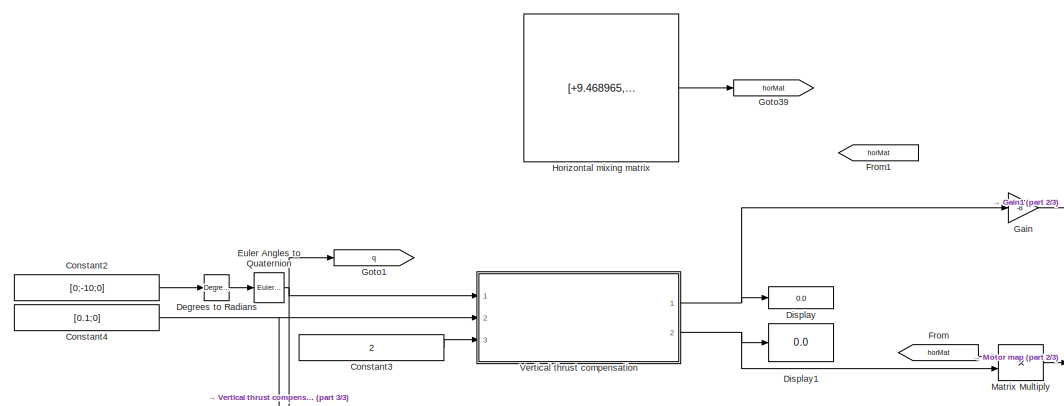
[diagram: root canvas - part 1/3, top left region]
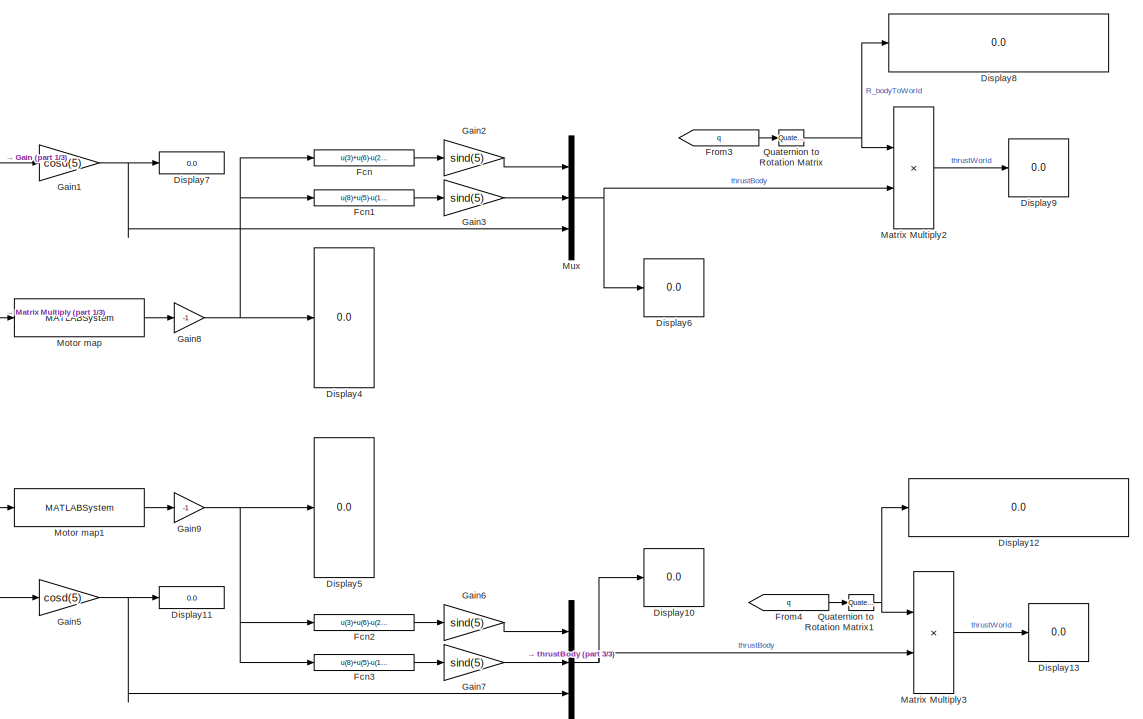
[diagram: root canvas - part 2/3, right side, full height]
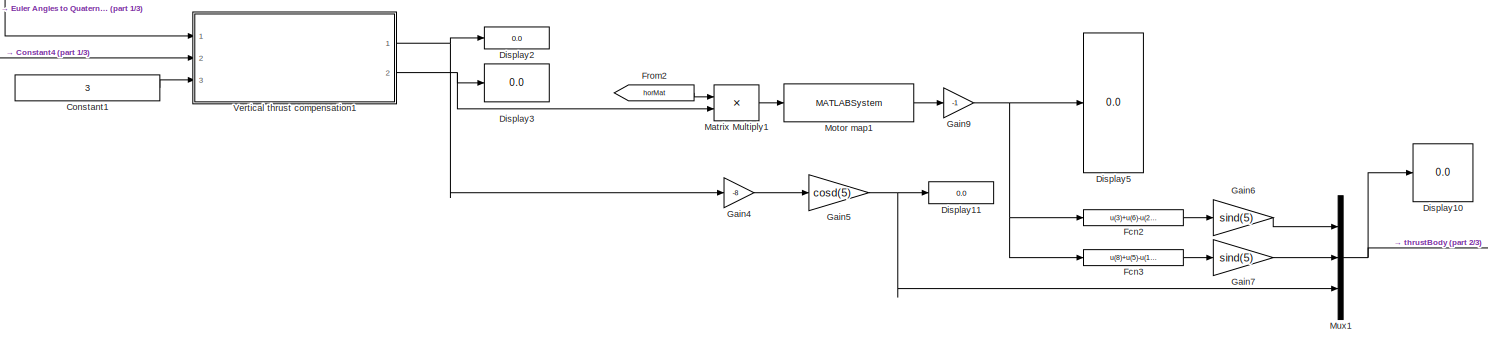
[diagram: root canvas - part 3/3, bottom center region]
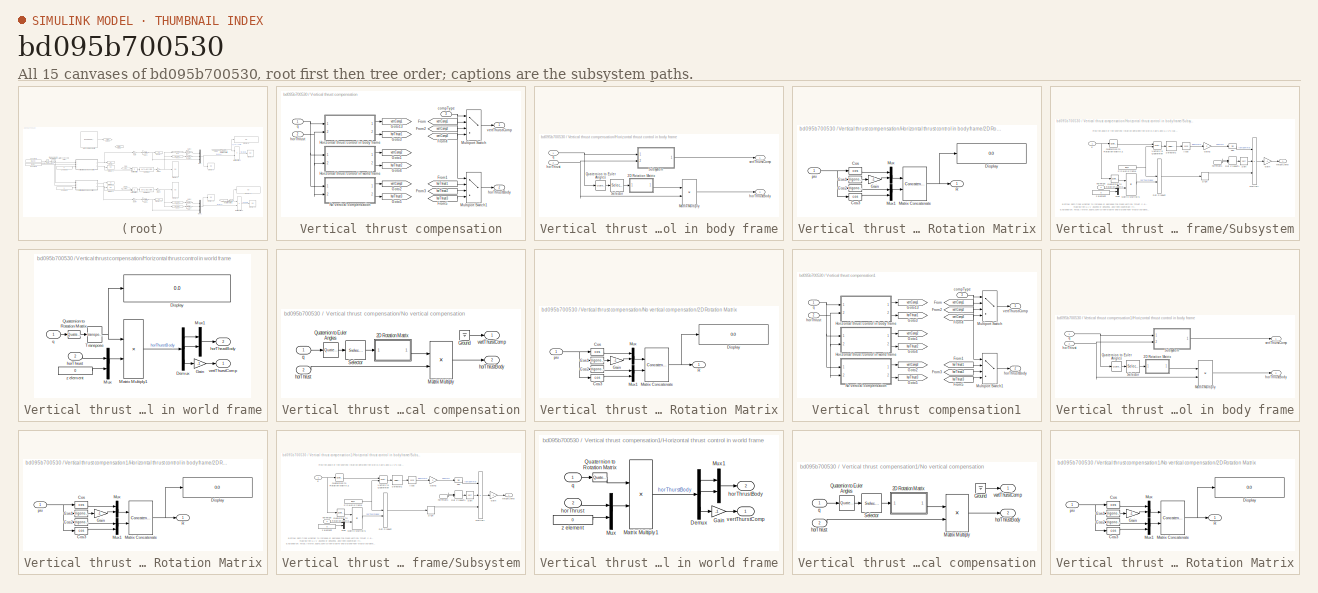
[diagram: thumbnail index - all 15 canvases of the model, root first then tree order]
MODEL slx_bd095b700530
KIND model
CONFIG AbsTol = auto
CONFIG EnableMultiTasking = off
CONFIG FixedStep = auto
CONFIG MaxStep = auto
CONFIG MinStep = auto
CONFIG RelTol = 1e-3
CONFIG SampleTimeConstraint = Unconstrained
CONFIG SolverName = VariableStepAuto
CONFIG StartTime = 0.0
CONFIG StopTime = 10.0
BLOCK [Constant] Constant1
  Value = 3
BLOCK [Constant] Constant2
  Value = [0;-10;0]
BLOCK [Constant] Constant3
  Value = 2
BLOCK [Constant] Constant4
  Value = [0.1;0]
BLOCK [Reference] Degrees to Radians  REF=simulink_extras/Transformations/Degrees to
Radians
  Ports = [1, 1]
  SourceBlock = simulink_extras/Transformations/Degrees to\nRadians
  SourceProductBaseCode = SL
  SourceType = DegreesToRadians
BLOCK [Display] Display
  Decimation = 1
  Ports = [1]
BLOCK [Display] Display1
  Decimation = 1
  Ports = [1]
BLOCK [Display] Display10
  Decimation = 1
  Ports = [1]
BLOCK [Display] Display11
  Decimation = 1
  Ports = [1]
BLOCK [Display] Display12
  Decimation = 1
  Ports = [1]
BLOCK [Display] Display13
  Decimation = 1
  Ports = [1]
BLOCK [Display] Display2
  Decimation = 1
  Ports = [1]
BLOCK [Display] Display3
  Decimation = 1
  Ports = [1]
BLOCK [Display] Display4
  Decimation = 1
  Ports = [1]
BLOCK [Display] Display5
  Decimation = 1
  Ports = [1]
BLOCK [Display] Display6
  Decimation = 1
  Ports = [1]
BLOCK [Display] Display7
  Decimation = 1
  Ports = [1]
BLOCK [Display] Display8
  Decimation = 1
  Ports = [1]
BLOCK [Display] Display9
  Decimation = 1
  Ports = [1]
BLOCK [Reference] Euler Angles to Quaternion  REF=QuaternionLibrary/Euler Angles
to Quaternion
  Ports = [1, 1]
  SourceBlock = QuaternionLibrary/Euler Angles\nto Quaternion
BLOCK [Fcn] Fcn
  Expr = u(3)+u(6)-u(2)-u(7)
BLOCK [Fcn] Fcn1
  Expr = u(8)+u(5)-u(1)-u(4)
BLOCK [Fcn] Fcn2
  Expr = u(3)+u(6)-u(2)-u(7)
BLOCK [Fcn] Fcn3
  Expr = u(8)+u(5)-u(1)-u(4)
BLOCK [From] From
  GotoTag = horMat
BLOCK [From] From1
  GotoTag = horMat
BLOCK [From] From2
  GotoTag = horMat
BLOCK [From] From3
  GotoTag = q
BLOCK [From] From4
  GotoTag = q
BLOCK [Gain] Gain
  Gain = -8
BLOCK [Gain] Gain1
  Gain = cosd(5)
BLOCK [Gain] Gain2
  Gain = sind(5)
BLOCK [Gain] Gain3
  Gain = sind(5)
BLOCK [Gain] Gain4
  Gain = -8
BLOCK [Gain] Gain5
  Gain = cosd(5)
BLOCK [Gain] Gain6
  Gain = sind(5)
BLOCK [Gain] Gain7
  Gain = sind(5)
BLOCK [Gain] Gain8
  Gain = -1
BLOCK [Gain] Gain9
  Gain = -1
BLOCK [Goto] Goto1
  GotoTag = q
BLOCK [Goto] Goto39
  GotoTag = horMat
BLOCK [Constant] Horizontal mixing matrix
  Value = [+9.468965, -22.860105;\n -9.468965, +22.860105;\n -22.860105, +9.468965;\n -9.468965, -22.860105;\n +9.468965, +22.860105;\n +22.860105, -9.468965;\n -22.860105, -9.468965;\n +22.860105, +9.468965]
BLOCK [Product] Matrix Multiply
  Multiplication = Matrix(*)
  Ports = [2, 1]
BLOCK [Product] Matrix Multiply1
  Multiplication = Matrix(*)
  Ports = [2, 1]
BLOCK [Product] Matrix Multiply2
  Multiplication = Matrix(*)
  Ports = [2, 1]
BLOCK [Product] Matrix Multiply3
  Multiplication = Matrix(*)
  Ports = [2, 1]
BLOCK [MATLABSystem] Motor map
  MaskDisplay = disp(['MOTOR' char(10) 'MAP' char(10) 'octa_x']);\nport_label('input',1,'px4PWM');\nport_label('output',1,'simPWM');
  MaskType = MotorMap
  Ports = [1, 1]
  SimulateUsing = Code generation
  System = MotorMap
  airframeConfig = 5
BLOCK [MATLABSystem] Motor map1
  MaskDisplay = disp(['MOTOR' char(10) 'MAP' char(10) 'octa_x']);\nport_label('input',1,'px4PWM');\nport_label('output',1,'simPWM');
  MaskType = MotorMap
  Ports = [1, 1]
  SimulateUsing = Code generation
  System = MotorMap
  airframeConfig = 5
BLOCK [Mux] Mux
  DisplayOption = bar
  Inputs = 3
  Ports = [3, 1]
BLOCK [Mux] Mux1
  DisplayOption = bar
  Inputs = 3
  Ports = [3, 1]
BLOCK [Reference] Quaternion to Rotation Matrix  REF=QuaternionLibrary/Quaternion
to Rotation Matrix
  Ports = [1, 1]
  SourceBlock = QuaternionLibrary/Quaternion\nto Rotation Matrix
BLOCK [Reference] Quaternion to Rotation Matrix1  REF=QuaternionLibrary/Quaternion
to Rotation Matrix
  Ports = [1, 1]
  SourceBlock = QuaternionLibrary/Quaternion\nto Rotation Matrix
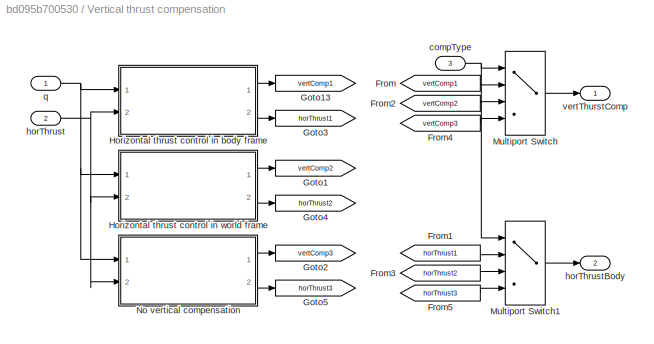
BLOCK [SubSystem] Vertical thrust compensation
  Ports = [3, 2]
  RequestExecContextInheritance = off
BLOCK [Outport] Vertical thrust compensation/ horThrustBody
  Port = 2
  VectorParamsAs1DForOutWhenUnconnected = off
BLOCK [Outport] Vertical thrust compensation/ vertThurstComp
  VectorParamsAs1DForOutWhenUnconnected = off
BLOCK [From] Vertical thrust compensation/From
  GotoTag = vertComp1
BLOCK [From] Vertical thrust compensation/From1
  GotoTag = horThrust1
BLOCK [From] Vertical thrust compensation/From2
  GotoTag = vertComp2
BLOCK [From] Vertical thrust compensation/From3
  GotoTag = horThrust2
BLOCK [From] Vertical thrust compensation/From4
  GotoTag = vertComp3
BLOCK [From] Vertical thrust compensation/From5
  GotoTag = horThrust3
BLOCK [Goto] Vertical thrust compensation/Goto1
  GotoTag = vertComp2
BLOCK [Goto] Vertical thrust compensation/Goto13
  GotoTag = vertComp1
BLOCK [Goto] Vertical thrust compensation/Goto2
  GotoTag = vertComp3
BLOCK [Goto] Vertical thrust compensation/Goto3
  GotoTag = horThrust1
BLOCK [Goto] Vertical thrust compensation/Goto4
  GotoTag = horThrust2
BLOCK [Goto] Vertical thrust compensation/Goto5
  GotoTag = horThrust3
BLOCK [SubSystem] Vertical thrust compensation/Horizontal thrust control in body frame
  Ports = [2, 2]
  RequestExecContextInheritance = off
  VariantControl = HorThrustBodyFrame
BLOCK [SubSystem] Vertical thrust compensation/Horizontal thrust control in body frame/2D Rotation Matrix
  Ports = [1, 1]
  RequestExecContextInheritance = off
BLOCK [Trigonometry] Vertical thrust compensation/Horizontal thrust control in body frame/2D Rotation Matrix/Cos
  Operator = cos
  Ports = [1, 1]
BLOCK [Trigonometry] Vertical thrust compensation/Horizontal thrust control in body frame/2D Rotation Matrix/Cos1
  Ports = [1, 1]
BLOCK [Trigonometry] Vertical thrust compensation/Horizontal thrust control in body frame/2D Rotation Matrix/Cos2
  Ports = [1, 1]
BLOCK [Trigonometry] Vertical thrust compensation/Horizontal thrust control in body frame/2D Rotation Matrix/Cos3
  Operator = cos
  Ports = [1, 1]
BLOCK [Display] Vertical thrust compensation/Horizontal thrust control in body frame/2D Rotation Matrix/Display
  Decimation = 1
  Ports = [1]
BLOCK [Gain] Vertical thrust compensation/Horizontal thrust control in body frame/2D Rotation Matrix/Gain
  Gain = -1
BLOCK [Concatenate] Vertical thrust compensation/Horizontal thrust control in body frame/2D Rotation Matrix/Matrix Concatenate
  ConcatenateDimension = 2
  Mode = Multidimensional array
  Ports = [2, 1]
BLOCK [Mux] Vertical thrust compensation/Horizontal thrust control in body frame/2D Rotation Matrix/Mux
  DisplayOption = bar
  Inputs = 2
  Ports = [2, 1]
BLOCK [Mux] Vertical thrust compensation/Horizontal thrust control in body frame/2D Rotation Matrix/Mux1
  DisplayOption = bar
  Inputs = 2
  Ports = [2, 1]
BLOCK [Outport] Vertical thrust compensation/Horizontal thrust control in body frame/2D Rotation Matrix/R
  VectorParamsAs1DForOutWhenUnconnected = off
BLOCK [Inport] Vertical thrust compensation/Horizontal thrust control in body frame/2D Rotation Matrix/psi
BLOCK [Product] Vertical thrust compensation/Horizontal thrust control in body frame/Matrix Multiply
  Multiplication = Matrix(*)
  Ports = [2, 1]
BLOCK [Reference] Vertical thrust compensation/Horizontal thrust control in body frame/Quaternion to Euler Angles  REF=QuaternionLibrary/Quaternion
to Euler Angles
  Ports = [1, 1]
  SourceBlock = QuaternionLibrary/Quaternion\nto Euler Angles
BLOCK [Selector] Vertical thrust compensation/Horizontal thrust control in body frame/Selector
  IndexOptions = Index vector (dialog)
  Indices = 3
  InputPortWidth = 3
  OutputSizes = 1
  Ports = [1, 1]
BLOCK [SubSystem] Vertical thrust compensation/Horizontal thrust control in body frame/Subsystem
  Ports = [2, 1]
  RequestExecContextInheritance = off
BLOCK [Trigonometry] Vertical thrust compensation/Horizontal thrust control in body frame/Subsystem/Acos
  Operator = acos
  Ports = [1, 1]
BLOCK [DotProduct] Vertical thrust compensation/Horizontal thrust control in body frame/Subsystem/Dot Product
  OutDataTypeStr = Inherit: Inherit via internal rule
BLOCK [DotProduct] Vertical thrust compensation/Horizontal thrust control in body frame/Subsystem/Dot Product1
  OutDataTypeStr = Inherit: Inherit via internal rule
BLOCK [Gain] Vertical thrust compensation/Horizontal thrust control in body frame/Subsystem/Gain
  Commented = through
  Gain = -1
BLOCK [Gain] Vertical thrust compensation/Horizontal thrust control in body frame/Subsystem/Gain2
  Gain = 2
BLOCK [Product] Vertical thrust compensation/Horizontal thrust control in body frame/Subsystem/Matrix Multiply1
  Multiplication = Matrix(*)
  Ports = [2, 1]
BLOCK [Product] Vertical thrust compensation/Horizontal thrust control in body frame/Subsystem/Multiply
  Inputs = ***
  Ports = [3, 1]
BLOCK [Mux] Vertical thrust compensation/Horizontal thrust control in body frame/Subsystem/Mux
  DisplayOption = bar
  Inputs = 2
  Ports = [2, 1]
BLOCK [Reference] Vertical thrust compensation/Horizontal thrust control in body frame/Subsystem/Quaternion to Rotation Matrix  REF=QuaternionLibrary/Quaternion
to Rotation Matrix
  Ports = [1, 1]
  SourceBlock = QuaternionLibrary/Quaternion\nto Rotation Matrix
BLOCK [Reference] Vertical thrust compensation/Horizontal thrust control in body frame/Subsystem/Quaternion to Rotation Matrix Z  REF=QuaternionLibrary/Quaternion
to Rotation Matrix Z
  Ports = [1, 1]
  SourceBlock = QuaternionLibrary/Quaternion\nto Rotation Matrix Z
BLOCK [Selector] Vertical thrust compensation/Horizontal thrust control in body frame/Subsystem/Selector2
  IndexOptions = Index vector (dialog)
  Indices = 1
  InputPortWidth = 4
  OutputSizes = 1
  Ports = [1, 1]
BLOCK [Signum] Vertical thrust compensation/Horizontal thrust control in body frame/Subsystem/Sign
BLOCK [Sqrt] Vertical thrust compensation/Horizontal thrust control in body frame/Subsystem/Sqrt
BLOCK [Trigonometry] Vertical thrust compensation/Horizontal thrust control in body frame/Subsystem/Tan
  Operator = tan
  Ports = [1, 1]
BLOCK [Reference] Vertical thrust compensation/Horizontal thrust control in body frame/Subsystem/Vectors to Quaternion  REF=QuaternionLibrary/Vectors
to Quaternion
  Ports = [2, 1]
  SourceBlock = QuaternionLibrary/Vectors\nto Quaternion
BLOCK [Constant] Vertical thrust compensation/Horizontal thrust control in body frame/Subsystem/Z in world frame
  Value = [0; 0; 1]
BLOCK [Inport] Vertical thrust compensation/Horizontal thrust control in body frame/Subsystem/horThrust
  NameLocation = top
  Port = 2
BLOCK [InportShadow] Vertical thrust compensation/Horizontal thrust control in body frame/Subsystem/horThrust1
  Port = 2
BLOCK [Inport] Vertical thrust compensation/Horizontal thrust control in body frame/Subsystem/q
BLOCK [Outport] Vertical thrust compensation/Horizontal thrust control in body frame/Subsystem/thrustComp
  VectorParamsAs1DForOutWhenUnconnected = off
BLOCK [Constant] Vertical thrust compensation/Horizontal thrust control in body frame/Subsystem/z element
  Value = 0
BLOCK [Inport] Vertical thrust compensation/Horizontal thrust control in body frame/horThrust
  Port = 2
BLOCK [Outport] Vertical thrust compensation/Horizontal thrust control in body frame/horThrustBody
  Port = 2
  VectorParamsAs1DForOutWhenUnconnected = off
BLOCK [Inport] Vertical thrust compensation/Horizontal thrust control in body frame/q
BLOCK [Outport] Vertical thrust compensation/Horizontal thrust control in body frame/vertThurstComp
  VectorParamsAs1DForOutWhenUnconnected = off
BLOCK [SubSystem] Vertical thrust compensation/Horizontal thrust control in world frame
  Ports = [2, 2]
  RequestExecContextInheritance = off
  VariantControl = HorThrustWorldFrame
BLOCK [Outport] Vertical thrust compensation/Horizontal thrust control in world frame/ horThrustBody
  Port = 2
  VectorParamsAs1DForOutWhenUnconnected = off
BLOCK [Outport] Vertical thrust compensation/Horizontal thrust control in world frame/ vertThurstComp
  VectorParamsAs1DForOutWhenUnconnected = off
BLOCK [Demux] Vertical thrust compensation/Horizontal thrust control in world frame/Demux
  Outputs = 3
  Ports = [1, 3]
BLOCK [Display] Vertical thrust compensation/Horizontal thrust control in world frame/Display
  Decimation = 1
  Ports = [1]
BLOCK [Gain] Vertical thrust compensation/Horizontal thrust control in world frame/Gain
  Commented = through
  Gain = -1
BLOCK [Product] Vertical thrust compensation/Horizontal thrust control in world frame/Matrix Multiply1
  Multiplication = Matrix(*)
  Ports = [2, 1]
BLOCK [Mux] Vertical thrust compensation/Horizontal thrust control in world frame/Mux
  DisplayOption = bar
  Inputs = 2
  Ports = [2, 1]
BLOCK [Mux] Vertical thrust compensation/Horizontal thrust control in world frame/Mux1
  DisplayOption = bar
  Inputs = 2
  Ports = [2, 1]
BLOCK [Reference] Vertical thrust compensation/Horizontal thrust control in world frame/Quaternion to Rotation Matrix  REF=QuaternionLibrary/Quaternion
to Rotation Matrix
  Ports = [1, 1]
  SourceBlock = QuaternionLibrary/Quaternion\nto Rotation Matrix
BLOCK [Math] Vertical thrust compensation/Horizontal thrust control in world frame/Transpose
  Operator = transpose
  Ports = [1, 1]
  SignedPower = on
BLOCK [Inport] Vertical thrust compensation/Horizontal thrust control in world frame/horThrust 
  Port = 2
BLOCK [Inport] Vertical thrust compensation/Horizontal thrust control in world frame/q 
BLOCK [Constant] Vertical thrust compensation/Horizontal thrust control in world frame/z element
  Value = 0
BLOCK [MultiPortSwitch] Vertical thrust compensation/Multiport Switch
  InputSameDT = off
  Ports = [4, 1]
  SaturateOnIntegerOverflow = off
BLOCK [MultiPortSwitch] Vertical thrust compensation/Multiport Switch1
  InputSameDT = off
  Ports = [4, 1]
  SaturateOnIntegerOverflow = off
BLOCK [SubSystem] Vertical thrust compensation/No vertical compensation
  Ports = [2, 2]
  RequestExecContextInheritance = off
  VariantControl = HorThrustNoVertComp
BLOCK [Outport] Vertical thrust compensation/No vertical compensation/ horThrustBody
  Port = 2
  VectorParamsAs1DForOutWhenUnconnected = off
BLOCK [Outport] Vertical thrust compensation/No vertical compensation/ vertThurstComp
  VectorParamsAs1DForOutWhenUnconnected = off
BLOCK [SubSystem] Vertical thrust compensation/No vertical compensation/2D Rotation Matrix
  Ports = [1, 1]
  RequestExecContextInheritance = off
BLOCK [Trigonometry] Vertical thrust compensation/No vertical compensation/2D Rotation Matrix/Cos
  Operator = cos
  Ports = [1, 1]
BLOCK [Trigonometry] Vertical thrust compensation/No vertical compensation/2D Rotation Matrix/Cos1
  Ports = [1, 1]
BLOCK [Trigonometry] Vertical thrust compensation/No vertical compensation/2D Rotation Matrix/Cos2
  Ports = [1, 1]
BLOCK [Trigonometry] Vertical thrust compensation/No vertical compensation/2D Rotation Matrix/Cos3
  Operator = cos
  Ports = [1, 1]
BLOCK [Display] Vertical thrust compensation/No vertical compensation/2D Rotation Matrix/Display
  Decimation = 1
  Ports = [1]
BLOCK [Gain] Vertical thrust compensation/No vertical compensation/2D Rotation Matrix/Gain
  Gain = -1
BLOCK [Concatenate] Vertical thrust compensation/No vertical compensation/2D Rotation Matrix/Matrix Concatenate
  ConcatenateDimension = 2
  Mode = Multidimensional array
  Ports = [2, 1]
BLOCK [Mux] Vertical thrust compensation/No vertical compensation/2D Rotation Matrix/Mux
  DisplayOption = bar
  Inputs = 2
  Ports = [2, 1]
BLOCK [Mux] Vertical thrust compensation/No vertical compensation/2D Rotation Matrix/Mux1
  DisplayOption = bar
  Inputs = 2
  Ports = [2, 1]
BLOCK [Outport] Vertical thrust compensation/No vertical compensation/2D Rotation Matrix/R
  VectorParamsAs1DForOutWhenUnconnected = off
BLOCK [Inport] Vertical thrust compensation/No vertical compensation/2D Rotation Matrix/psi
BLOCK [Ground] Vertical thrust compensation/No vertical compensation/Ground
BLOCK [Product] Vertical thrust compensation/No vertical compensation/Matrix Multiply
  Multiplication = Matrix(*)
  Ports = [2, 1]
BLOCK [Reference] Vertical thrust compensation/No vertical compensation/Quaternion to Euler Angles  REF=QuaternionLibrary/Quaternion
to Euler Angles
  Ports = [1, 1]
  SourceBlock = QuaternionLibrary/Quaternion\nto Euler Angles
BLOCK [Selector] Vertical thrust compensation/No vertical compensation/Selector
  IndexOptions = Index vector (dialog)
  Indices = 3
  InputPortWidth = 3
  OutputSizes = 1
  Ports = [1, 1]
BLOCK [Inport] Vertical thrust compensation/No vertical compensation/horThrust 
  Port = 2
BLOCK [Inport] Vertical thrust compensation/No vertical compensation/q 
BLOCK [Inport] Vertical thrust compensation/compType
  NameLocation = top
  Port = 3
BLOCK [Inport] Vertical thrust compensation/horThrust 
  Port = 2
BLOCK [Inport] Vertical thrust compensation/q 
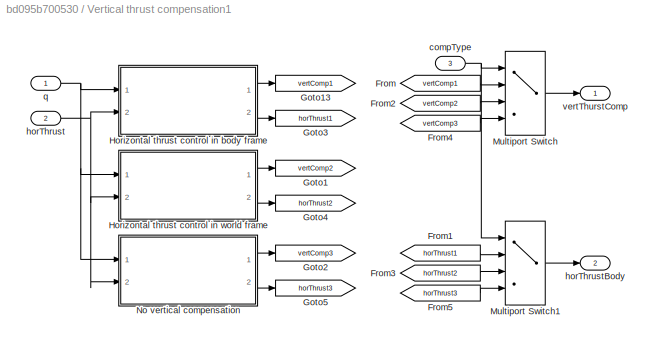
BLOCK [SubSystem] Vertical thrust compensation1
  Ports = [3, 2]
  RequestExecContextInheritance = off
BLOCK [Outport] Vertical thrust compensation1/ horThrustBody
  Port = 2
  VectorParamsAs1DForOutWhenUnconnected = off
BLOCK [Outport] Vertical thrust compensation1/ vertThurstComp
  VectorParamsAs1DForOutWhenUnconnected = off
BLOCK [From] Vertical thrust compensation1/From
  GotoTag = vertComp1
BLOCK [From] Vertical thrust compensation1/From1
  GotoTag = horThrust1
BLOCK [From] Vertical thrust compensation1/From2
  GotoTag = vertComp2
BLOCK [From] Vertical thrust compensation1/From3
  GotoTag = horThrust2
BLOCK [From] Vertical thrust compensation1/From4
  GotoTag = vertComp3
BLOCK [From] Vertical thrust compensation1/From5
  GotoTag = horThrust3
BLOCK [Goto] Vertical thrust compensation1/Goto1
  GotoTag = vertComp2
BLOCK [Goto] Vertical thrust compensation1/Goto13
  GotoTag = vertComp1
BLOCK [Goto] Vertical thrust compensation1/Goto2
  GotoTag = vertComp3
BLOCK [Goto] Vertical thrust compensation1/Goto3
  GotoTag = horThrust1
BLOCK [Goto] Vertical thrust compensation1/Goto4
  GotoTag = horThrust2
BLOCK [Goto] Vertical thrust compensation1/Goto5
  GotoTag = horThrust3
BLOCK [SubSystem] Vertical thrust compensation1/Horizontal thrust control in body frame
  Ports = [2, 2]
  RequestExecContextInheritance = off
  VariantControl = HorThrustBodyFrame
BLOCK [SubSystem] Vertical thrust compensation1/Horizontal thrust control in body frame/2D Rotation Matrix
  Ports = [1, 1]
  RequestExecContextInheritance = off
BLOCK [Trigonometry] Vertical thrust compensation1/Horizontal thrust control in body frame/2D Rotation Matrix/Cos
  Operator = cos
  Ports = [1, 1]
BLOCK [Trigonometry] Vertical thrust compensation1/Horizontal thrust control in body frame/2D Rotation Matrix/Cos1
  Ports = [1, 1]
BLOCK [Trigonometry] Vertical thrust compensation1/Horizontal thrust control in body frame/2D Rotation Matrix/Cos2
  Ports = [1, 1]
BLOCK [Trigonometry] Vertical thrust compensation1/Horizontal thrust control in body frame/2D Rotation Matrix/Cos3
  Operator = cos
  Ports = [1, 1]
BLOCK [Display] Vertical thrust compensation1/Horizontal thrust control in body frame/2D Rotation Matrix/Display
  Decimation = 1
  Ports = [1]
BLOCK [Gain] Vertical thrust compensation1/Horizontal thrust control in body frame/2D Rotation Matrix/Gain
  Gain = -1
BLOCK [Concatenate] Vertical thrust compensation1/Horizontal thrust control in body frame/2D Rotation Matrix/Matrix Concatenate
  ConcatenateDimension = 2
  Mode = Multidimensional array
  Ports = [2, 1]
BLOCK [Mux] Vertical thrust compensation1/Horizontal thrust control in body frame/2D Rotation Matrix/Mux
  DisplayOption = bar
  Inputs = 2
  Ports = [2, 1]
BLOCK [Mux] Vertical thrust compensation1/Horizontal thrust control in body frame/2D Rotation Matrix/Mux1
  DisplayOption = bar
  Inputs = 2
  Ports = [2, 1]
BLOCK [Outport] Vertical thrust compensation1/Horizontal thrust control in body frame/2D Rotation Matrix/R
  VectorParamsAs1DForOutWhenUnconnected = off
BLOCK [Inport] Vertical thrust compensation1/Horizontal thrust control in body frame/2D Rotation Matrix/psi
BLOCK [Product] Vertical thrust compensation1/Horizontal thrust control in body frame/Matrix Multiply
  Multiplication = Matrix(*)
  Ports = [2, 1]
BLOCK [Reference] Vertical thrust compensation1/Horizontal thrust control in body frame/Quaternion to Euler Angles  REF=QuaternionLibrary/Quaternion
to Euler Angles
  Ports = [1, 1]
  SourceBlock = QuaternionLibrary/Quaternion\nto Euler Angles
BLOCK [Selector] Vertical thrust compensation1/Horizontal thrust control in body frame/Selector
  IndexOptions = Index vector (dialog)
  Indices = 3
  InputPortWidth = 3
  OutputSizes = 1
  Ports = [1, 1]
BLOCK [SubSystem] Vertical thrust compensation1/Horizontal thrust control in body frame/Subsystem
  Ports = [2, 1]
  RequestExecContextInheritance = off
BLOCK [Trigonometry] Vertical thrust compensation1/Horizontal thrust control in body frame/Subsystem/Acos
  Operator = acos
  Ports = [1, 1]
BLOCK [DotProduct] Vertical thrust compensation1/Horizontal thrust control in body frame/Subsystem/Dot Product
  OutDataTypeStr = Inherit: Inherit via internal rule
BLOCK [DotProduct] Vertical thrust compensation1/Horizontal thrust control in body frame/Subsystem/Dot Product1
  OutDataTypeStr = Inherit: Inherit via internal rule
BLOCK [Gain] Vertical thrust compensation1/Horizontal thrust control in body frame/Subsystem/Gain
  Commented = through
  Gain = -1
BLOCK [Gain] Vertical thrust compensation1/Horizontal thrust control in body frame/Subsystem/Gain2
  Gain = 2
BLOCK [Product] Vertical thrust compensation1/Horizontal thrust control in body frame/Subsystem/Matrix Multiply1
  Multiplication = Matrix(*)
  Ports = [2, 1]
BLOCK [Product] Vertical thrust compensation1/Horizontal thrust control in body frame/Subsystem/Multiply
  Inputs = ***
  Ports = [3, 1]
BLOCK [Mux] Vertical thrust compensation1/Horizontal thrust control in body frame/Subsystem/Mux
  DisplayOption = bar
  Inputs = 2
  Ports = [2, 1]
BLOCK [Reference] Vertical thrust compensation1/Horizontal thrust control in body frame/Subsystem/Quaternion to Rotation Matrix  REF=QuaternionLibrary/Quaternion
to Rotation Matrix
  Ports = [1, 1]
  SourceBlock = QuaternionLibrary/Quaternion\nto Rotation Matrix
BLOCK [Reference] Vertical thrust compensation1/Horizontal thrust control in body frame/Subsystem/Quaternion to Rotation Matrix Z  REF=QuaternionLibrary/Quaternion
to Rotation Matrix Z
  Ports = [1, 1]
  SourceBlock = QuaternionLibrary/Quaternion\nto Rotation Matrix Z
BLOCK [Selector] Vertical thrust compensation1/Horizontal thrust control in body frame/Subsystem/Selector2
  IndexOptions = Index vector (dialog)
  Indices = 1
  InputPortWidth = 4
  OutputSizes = 1
  Ports = [1, 1]
BLOCK [Signum] Vertical thrust compensation1/Horizontal thrust control in body frame/Subsystem/Sign
BLOCK [Sqrt] Vertical thrust compensation1/Horizontal thrust control in body frame/Subsystem/Sqrt
BLOCK [Trigonometry] Vertical thrust compensation1/Horizontal thrust control in body frame/Subsystem/Tan
  Operator = tan
  Ports = [1, 1]
BLOCK [Reference] Vertical thrust compensation1/Horizontal thrust control in body frame/Subsystem/Vectors to Quaternion  REF=QuaternionLibrary/Vectors
to Quaternion
  Ports = [2, 1]
  SourceBlock = QuaternionLibrary/Vectors\nto Quaternion
BLOCK [Constant] Vertical thrust compensation1/Horizontal thrust control in body frame/Subsystem/Z in world frame
  Value = [0; 0; 1]
BLOCK [Inport] Vertical thrust compensation1/Horizontal thrust control in body frame/Subsystem/horThrust
  NameLocation = top
  Port = 2
BLOCK [InportShadow] Vertical thrust compensation1/Horizontal thrust control in body frame/Subsystem/horThrust1
  Port = 2
BLOCK [Inport] Vertical thrust compensation1/Horizontal thrust control in body frame/Subsystem/q
BLOCK [Outport] Vertical thrust compensation1/Horizontal thrust control in body frame/Subsystem/thrustComp
  VectorParamsAs1DForOutWhenUnconnected = off
BLOCK [Constant] Vertical thrust compensation1/Horizontal thrust control in body frame/Subsystem/z element
  Value = 0
BLOCK [Inport] Vertical thrust compensation1/Horizontal thrust control in body frame/horThrust
  Port = 2
BLOCK [Outport] Vertical thrust compensation1/Horizontal thrust control in body frame/horThrustBody
  Port = 2
  VectorParamsAs1DForOutWhenUnconnected = off
BLOCK [Inport] Vertical thrust compensation1/Horizontal thrust control in body frame/q
BLOCK [Outport] Vertical thrust compensation1/Horizontal thrust control in body frame/vertThurstComp
  VectorParamsAs1DForOutWhenUnconnected = off
BLOCK [SubSystem] Vertical thrust compensation1/Horizontal thrust control in world frame
  Ports = [2, 2]
  RequestExecContextInheritance = off
  VariantControl = HorThrustWorldFrame
BLOCK [Outport] Vertical thrust compensation1/Horizontal thrust control in world frame/ horThrustBody
  Port = 2
  VectorParamsAs1DForOutWhenUnconnected = off
BLOCK [Outport] Vertical thrust compensation1/Horizontal thrust control in world frame/ vertThurstComp
  VectorParamsAs1DForOutWhenUnconnected = off
BLOCK [Demux] Vertical thrust compensation1/Horizontal thrust control in world frame/Demux
  Outputs = 3
  Ports = [1, 3]
BLOCK [Gain] Vertical thrust compensation1/Horizontal thrust control in world frame/Gain
  Commented = through
  Gain = -1
BLOCK [Product] Vertical thrust compensation1/Horizontal thrust control in world frame/Matrix Multiply1
  Multiplication = Matrix(*)
  Ports = [2, 1]
BLOCK [Mux] Vertical thrust compensation1/Horizontal thrust control in world frame/Mux
  DisplayOption = bar
  Inputs = 2
  Ports = [2, 1]
BLOCK [Mux] Vertical thrust compensation1/Horizontal thrust control in world frame/Mux1
  DisplayOption = bar
  Inputs = 2
  Ports = [2, 1]
BLOCK [Reference] Vertical thrust compensation1/Horizontal thrust control in world frame/Quaternion to Rotation Matrix  REF=QuaternionLibrary/Quaternion
to Rotation Matrix
  Ports = [1, 1]
  SourceBlock = QuaternionLibrary/Quaternion\nto Rotation Matrix
BLOCK [Inport] Vertical thrust compensation1/Horizontal thrust control in world frame/horThrust 
  Port = 2
BLOCK [Inport] Vertical thrust compensation1/Horizontal thrust control in world frame/q 
BLOCK [Constant] Vertical thrust compensation1/Horizontal thrust control in world frame/z element
  Value = 0
BLOCK [MultiPortSwitch] Vertical thrust compensation1/Multiport Switch
  InputSameDT = off
  Ports = [4, 1]
  SaturateOnIntegerOverflow = off
BLOCK [MultiPortSwitch] Vertical thrust compensation1/Multiport Switch1
  InputSameDT = off
  Ports = [4, 1]
  SaturateOnIntegerOverflow = off
BLOCK [SubSystem] Vertical thrust compensation1/No vertical compensation
  Ports = [2, 2]
  RequestExecContextInheritance = off
  VariantControl = HorThrustNoVertComp
BLOCK [Outport] Vertical thrust compensation1/No vertical compensation/ horThrustBody
  Port = 2
  VectorParamsAs1DForOutWhenUnconnected = off
BLOCK [Outport] Vertical thrust compensation1/No vertical compensation/ vertThurstComp
  VectorParamsAs1DForOutWhenUnconnected = off
BLOCK [SubSystem] Vertical thrust compensation1/No vertical compensation/2D Rotation Matrix
  Ports = [1, 1]
  RequestExecContextInheritance = off
BLOCK [Trigonometry] Vertical thrust compensation1/No vertical compensation/2D Rotation Matrix/Cos
  Operator = cos
  Ports = [1, 1]
BLOCK [Trigonometry] Vertical thrust compensation1/No vertical compensation/2D Rotation Matrix/Cos1
  Ports = [1, 1]
BLOCK [Trigonometry] Vertical thrust compensation1/No vertical compensation/2D Rotation Matrix/Cos2
  Ports = [1, 1]
BLOCK [Trigonometry] Vertical thrust compensation1/No vertical compensation/2D Rotation Matrix/Cos3
  Operator = cos
  Ports = [1, 1]
BLOCK [Display] Vertical thrust compensation1/No vertical compensation/2D Rotation Matrix/Display
  Decimation = 1
  Ports = [1]
BLOCK [Gain] Vertical thrust compensation1/No vertical compensation/2D Rotation Matrix/Gain
  Gain = -1
BLOCK [Concatenate] Vertical thrust compensation1/No vertical compensation/2D Rotation Matrix/Matrix Concatenate
  ConcatenateDimension = 2
  Mode = Multidimensional array
  Ports = [2, 1]
BLOCK [Mux] Vertical thrust compensation1/No vertical compensation/2D Rotation Matrix/Mux
  DisplayOption = bar
  Inputs = 2
  Ports = [2, 1]
BLOCK [Mux] Vertical thrust compensation1/No vertical compensation/2D Rotation Matrix/Mux1
  DisplayOption = bar
  Inputs = 2
  Ports = [2, 1]
BLOCK [Outport] Vertical thrust compensation1/No vertical compensation/2D Rotation Matrix/R
  VectorParamsAs1DForOutWhenUnconnected = off
BLOCK [Inport] Vertical thrust compensation1/No vertical compensation/2D Rotation Matrix/psi
BLOCK [Ground] Vertical thrust compensation1/No vertical compensation/Ground
BLOCK [Product] Vertical thrust compensation1/No vertical compensation/Matrix Multiply
  Multiplication = Matrix(*)
  Ports = [2, 1]
BLOCK [Reference] Vertical thrust compensation1/No vertical compensation/Quaternion to Euler Angles  REF=QuaternionLibrary/Quaternion
to Euler Angles
  Ports = [1, 1]
  SourceBlock = QuaternionLibrary/Quaternion\nto Euler Angles
BLOCK [Selector] Vertical thrust compensation1/No vertical compensation/Selector
  IndexOptions = Index vector (dialog)
  Indices = 3
  InputPortWidth = 3
  OutputSizes = 1
  Ports = [1, 1]
BLOCK [Inport] Vertical thrust compensation1/No vertical compensation/horThrust 
  Port = 2
BLOCK [Inport] Vertical thrust compensation1/No vertical compensation/q 
BLOCK [Inport] Vertical thrust compensation1/compType
  NameLocation = top
  Port = 3
BLOCK [Inport] Vertical thrust compensation1/horThrust 
  Port = 2
BLOCK [Inport] Vertical thrust compensation1/q 
ANNOTATION Vertical thrust compensation/Horizontal thrust control in body frame/Subsystem: Bottow path finds whether to increase or decrease the mean vertical thrust (i.e. whether the current horizontal thrust vector is making the UAV ascend or descend, and then counteract it). Explanation: https://www.quora.com/Given-a-point-and-a-plane-how-would-you-determine-which-side-of-the-plane-the-point-lies
ANNOTATION Vertical thrust compensation/Horizontal thrust control in body frame/Subsystem: Find the angle of the shortest rotation between the world z-axis and UAV's (called gamma)
ANNOTATION Vertical thrust compensation1/Horizontal thrust control in body frame/Subsystem: Bottow path finds whether to increase or decrease the mean vertical thrust (i.e. whether the current horizontal thrust vector is making the UAV ascend or descend, and then counteract it). Explanation: https://www.quora.com/Given-a-point-and-a-plane-how-would-you-determine-which-side-of-the-plane-the-point-lies
ANNOTATION Vertical thrust compensation1/Horizontal thrust control in body frame/Subsystem: Find the angle of the shortest rotation between the world z-axis and UAV's (called gamma)
LINE Constant1:1 -> Vertical thrust compensation1:3
LINE Constant2:1 -> Degrees to Radians:1
LINE Constant3:1 -> Vertical thrust compensation:3
NET Constant4:1 -> Vertical thrust compensation1:2, Vertical thrust compensation:2
LINE Degrees to Radians:1 -> Euler Angles to Quaternion:1
NET Euler Angles to Quaternion:1 -> Goto1:1, Vertical thrust compensation1:1, Vertical thrust compensation:1
LINE Fcn1:1 -> Gain3:1
LINE Fcn2:1 -> Gain6:1
LINE Fcn3:1 -> Gain7:1
LINE Fcn:1 -> Gain2:1
LINE From2:1 -> Matrix Multiply1:1
LINE From3:1 -> Quaternion to Rotation Matrix:1
LINE From4:1 -> Quaternion to Rotation Matrix1:1
LINE From:1 -> Matrix Multiply:1
NET Gain1:1 -> Display7:1, Mux:3
LINE Gain2:1 -> Mux:1
LINE Gain3:1 -> Mux:2
LINE Gain4:1 -> Gain5:1
NET Gain5:1 -> Display11:1, Mux1:3
LINE Gain6:1 -> Mux1:1
LINE Gain7:1 -> Mux1:2
NET Gain8:1 -> Display4:1, Fcn1:1, Fcn:1
NET Gain9:1 -> Display5:1, Fcn2:1, Fcn3:1
LINE Gain:1 -> Gain1:1
LINE Horizontal mixing matrix:1 -> Goto39:1
LINE Matrix Multiply1:1 -> Motor map1:1
LINE Matrix Multiply2:1 -> Display9:1
LINE Matrix Multiply3:1 -> Display13:1
LINE Matrix Multiply:1 -> Motor map:1
LINE Motor map1:1 -> Gain9:1
LINE Motor map:1 -> Gain8:1
NET Mux1:1 -> Display10:1, Matrix Multiply3:2
NET Mux:1 -> Display6:1, Matrix Multiply2:2
NET Quaternion to Rotation Matrix1:1 -> Display12:1, Matrix Multiply3:1
NET Quaternion to Rotation Matrix:1 -> Display8:1, Matrix Multiply2:1
LINE Vertical thrust compensation/From1:1 -> Vertical thrust compensation/Multiport Switch1:2
LINE Vertical thrust compensation/From2:1 -> Vertical thrust compensation/Multiport Switch:3
LINE Vertical thrust compensation/From3:1 -> Vertical thrust compensation/Multiport Switch1:3
LINE Vertical thrust compensation/From4:1 -> Vertical thrust compensation/Multiport Switch:4
LINE Vertical thrust compensation/From5:1 -> Vertical thrust compensation/Multiport Switch1:4
LINE Vertical thrust compensation/From:1 -> Vertical thrust compensation/Multiport Switch:2
LINE Vertical thrust compensation/Horizontal thrust control in body frame/2D Rotation Matrix/Cos1:1 -> Vertical thrust compensation/Horizontal thrust control in body frame/2D Rotation Matrix/Gain:1
LINE Vertical thrust compensation/Horizontal thrust control in body frame/2D Rotation Matrix/Cos2:1 -> Vertical thrust compensation/Horizontal thrust control in body frame/2D Rotation Matrix/Mux1:1
LINE Vertical thrust compensation/Horizontal thrust control in body frame/2D Rotation Matrix/Cos3:1 -> Vertical thrust compensation/Horizontal thrust control in body frame/2D Rotation Matrix/Mux1:2
LINE Vertical thrust compensation/Horizontal thrust control in body frame/2D Rotation Matrix/Cos:1 -> Vertical thrust compensation/Horizontal thrust control in body frame/2D Rotation Matrix/Mux:1
LINE Vertical thrust compensation/Horizontal thrust control in body frame/2D Rotation Matrix/Gain:1 -> Vertical thrust compensation/Horizontal thrust control in body frame/2D Rotation Matrix/Mux:2
NET Vertical thrust compensation/Horizontal thrust control in body frame/2D Rotation Matrix/Matrix Concatenate:1 -> Vertical thrust compensation/Horizontal thrust control in body frame/2D Rotation Matrix/Display:1, Vertical thrust compensation/Horizontal thrust control in body frame/2D Rotation Matrix/R:1
LINE Vertical thrust compensation/Horizontal thrust control in body frame/2D Rotation Matrix/Mux1:1 -> Vertical thrust compensation/Horizontal thrust control in body frame/2D Rotation Matrix/Matrix Concatenate:2
LINE Vertical thrust compensation/Horizontal thrust control in body frame/2D Rotation Matrix/Mux:1 -> Vertical thrust compensation/Horizontal thrust control in body frame/2D Rotation Matrix/Matrix Concatenate:1
NET Vertical thrust compensation/Horizontal thrust control in body frame/2D Rotation Matrix/psi:1 -> Vertical thrust compensation/Horizontal thrust control in body frame/2D Rotation Matrix/Cos1:1, Vertical thrust compensation/Horizontal thrust control in body frame/2D Rotation Matrix/Cos2:1, Vertical thrust compensation/Horizontal thrust control in body frame/2D Rotation Matrix/Cos3:1, Vertical thrust compensation/Horizontal thrust control in body frame/2D Rotation Matrix/Cos:1
LINE Vertical thrust compensation/Horizontal thrust control in body frame/2D Rotation Matrix:1 -> Vertical thrust compensation/Horizontal thrust control in body frame/Matrix Multiply:1
LINE Vertical thrust compensation/Horizontal thrust control in body frame/Matrix Multiply:1 -> Vertical thrust compensation/Horizontal thrust control in body frame/horThrustBody:1
LINE Vertical thrust compensation/Horizontal thrust control in body frame/Quaternion to Euler Angles:1 -> Vertical thrust compensation/Horizontal thrust control in body frame/Selector:1
LINE Vertical thrust compensation/Horizontal thrust control in body frame/Selector:1 -> Vertical thrust compensation/Horizontal thrust control in body frame/2D Rotation Matrix:1
LINE Vertical thrust compensation/Horizontal thrust control in body frame/Subsystem/Acos:1 -> Vertical thrust compensation/Horizontal thrust control in body frame/Subsystem/Gain2:1
LINE Vertical thrust compensation/Horizontal thrust control in body frame/Subsystem/Dot Product1:1 -> Vertical thrust compensation/Horizontal thrust control in body frame/Subsystem/Sqrt:1
LINE Vertical thrust compensation/Horizontal thrust control in body frame/Subsystem/Dot Product:1 -> Vertical thrust compensation/Horizontal thrust control in body frame/Subsystem/Sign:1
LINE Vertical thrust compensation/Horizontal thrust control in body frame/Subsystem/Gain2:1 -> Vertical thrust compensation/Horizontal thrust control in body frame/Subsystem/Tan:1
LINE Vertical thrust compensation/Horizontal thrust control in body frame/Subsystem/Gain:1 -> Vertical thrust compensation/Horizontal thrust control in body frame/Subsystem/thrustComp:1
LINE Vertical thrust compensation/Horizontal thrust control in body frame/Subsystem/Matrix Multiply1:1 -> Vertical thrust compensation/Horizontal thrust control in body frame/Subsystem/Dot Product:2
LINE Vertical thrust compensation/Horizontal thrust control in body frame/Subsystem/Multiply:1 -> Vertical thrust compensation/Horizontal thrust control in body frame/Subsystem/Gain:1
LINE Vertical thrust compensation/Horizontal thrust control in body frame/Subsystem/Mux:1 -> Vertical thrust compensation/Horizontal thrust control in body frame/Subsystem/Matrix Multiply1:2
LINE Vertical thrust compensation/Horizontal thrust control in body frame/Subsystem/Quaternion to Rotation Matrix Z:1 -> Vertical thrust compensation/Horizontal thrust control in body frame/Subsystem/Vectors to Quaternion:1
LINE Vertical thrust compensation/Horizontal thrust control in body frame/Subsystem/Quaternion to Rotation Matrix:1 -> Vertical thrust compensation/Horizontal thrust control in body frame/Subsystem/Matrix Multiply1:1
LINE Vertical thrust compensation/Horizontal thrust control in body frame/Subsystem/Selector2:1 -> Vertical thrust compensation/Horizontal thrust control in body frame/Subsystem/Acos:1
LINE Vertical thrust compensation/Horizontal thrust control in body frame/Subsystem/Sign:1 -> Vertical thrust compensation/Horizontal thrust control in body frame/Subsystem/Multiply:3
LINE Vertical thrust compensation/Horizontal thrust control in body frame/Subsystem/Sqrt:1 -> Vertical thrust compensation/Horizontal thrust control in body frame/Subsystem/Multiply:2
LINE Vertical thrust compensation/Horizontal thrust control in body frame/Subsystem/Tan:1 -> Vertical thrust compensation/Horizontal thrust control in body frame/Subsystem/Multiply:1
LINE Vertical thrust compensation/Horizontal thrust control in body frame/Subsystem/Vectors to Quaternion:1 -> Vertical thrust compensation/Horizontal thrust control in body frame/Subsystem/Selector2:1
NET Vertical thrust compensation/Horizontal thrust control in body frame/Subsystem/Z in world frame:1 -> Vertical thrust compensation/Horizontal thrust control in body frame/Subsystem/Dot Product:1, Vertical thrust compensation/Horizontal thrust control in body frame/Subsystem/Vectors to Quaternion:2
NET Vertical thrust compensation/Horizontal thrust control in body frame/Subsystem/horThrust1:1 -> Vertical thrust compensation/Horizontal thrust control in body frame/Subsystem/Dot Product1:1, Vertical thrust compensation/Horizontal thrust control in body frame/Subsystem/Dot Product1:2
LINE Vertical thrust compensation/Horizontal thrust control in body frame/Subsystem/horThrust:1 -> Vertical thrust compensation/Horizontal thrust control in body frame/Subsystem/Mux:1
NET Vertical thrust compensation/Horizontal thrust control in body frame/Subsystem/q:1 -> Vertical thrust compensation/Horizontal thrust control in body frame/Subsystem/Quaternion to Rotation Matrix Z:1, Vertical thrust compensation/Horizontal thrust control in body frame/Subsystem/Quaternion to Rotation Matrix:1
LINE Vertical thrust compensation/Horizontal thrust control in body frame/Subsystem/z element:1 -> Vertical thrust compensation/Horizontal thrust control in body frame/Subsystem/Mux:2
LINE Vertical thrust compensation/Horizontal thrust control in body frame/Subsystem:1 -> Vertical thrust compensation/Horizontal thrust control in body frame/vertThurstComp:1
NET Vertical thrust compensation/Horizontal thrust control in body frame/horThrust:1 -> Vertical thrust compensation/Horizontal thrust control in body frame/Matrix Multiply:2, Vertical thrust compensation/Horizontal thrust control in body frame/Subsystem:2
NET Vertical thrust compensation/Horizontal thrust control in body frame/q:1 -> Vertical thrust compensation/Horizontal thrust control in body frame/Quaternion to Euler Angles:1, Vertical thrust compensation/Horizontal thrust control in body frame/Subsystem:1
LINE Vertical thrust compensation/Horizontal thrust control in body frame:1 -> Vertical thrust compensation/Goto13:1
LINE Vertical thrust compensation/Horizontal thrust control in body frame:2 -> Vertical thrust compensation/Goto3:1
LINE Vertical thrust compensation/Horizontal thrust control in world frame/Demux:1 -> Vertical thrust compensation/Horizontal thrust control in world frame/Mux1:1
LINE Vertical thrust compensation/Horizontal thrust control in world frame/Demux:2 -> Vertical thrust compensation/Horizontal thrust control in world frame/Mux1:2
LINE Vertical thrust compensation/Horizontal thrust control in world frame/Demux:3 -> Vertical thrust compensation/Horizontal thrust control in world frame/Gain:1
LINE Vertical thrust compensation/Horizontal thrust control in world frame/Gain:1 -> Vertical thrust compensation/Horizontal thrust control in world frame/ vertThurstComp:1
LINE Vertical thrust compensation/Horizontal thrust control in world frame/Matrix Multiply1:1 -> Vertical thrust compensation/Horizontal thrust control in world frame/Demux:1
LINE Vertical thrust compensation/Horizontal thrust control in world frame/Mux1:1 -> Vertical thrust compensation/Horizontal thrust control in world frame/ horThrustBody:1
LINE Vertical thrust compensation/Horizontal thrust control in world frame/Mux:1 -> Vertical thrust compensation/Horizontal thrust control in world frame/Matrix Multiply1:2
LINE Vertical thrust compensation/Horizontal thrust control in world frame/Quaternion to Rotation Matrix:1 -> Vertical thrust compensation/Horizontal thrust control in world frame/Transpose:1
NET Vertical thrust compensation/Horizontal thrust control in world frame/Transpose:1 -> Vertical thrust compensation/Horizontal thrust control in world frame/Display:1, Vertical thrust compensation/Horizontal thrust control in world frame/Matrix Multiply1:1
LINE Vertical thrust compensation/Horizontal thrust control in world frame/horThrust :1 -> Vertical thrust compensation/Horizontal thrust control in world frame/Mux:1
LINE Vertical thrust compensation/Horizontal thrust control in world frame/q :1 -> Vertical thrust compensation/Horizontal thrust control in world frame/Quaternion to Rotation Matrix:1
LINE Vertical thrust compensation/Horizontal thrust control in world frame/z element:1 -> Vertical thrust compensation/Horizontal thrust control in world frame/Mux:2
LINE Vertical thrust compensation/Horizontal thrust control in world frame:1 -> Vertical thrust compensation/Goto1:1
LINE Vertical thrust compensation/Horizontal thrust control in world frame:2 -> Vertical thrust compensation/Goto4:1
LINE Vertical thrust compensation/Multiport Switch1:1 -> Vertical thrust compensation/ horThrustBody:1
LINE Vertical thrust compensation/Multiport Switch:1 -> Vertical thrust compensation/ vertThurstComp:1
LINE Vertical thrust compensation/No vertical compensation/2D Rotation Matrix/Cos1:1 -> Vertical thrust compensation/No vertical compensation/2D Rotation Matrix/Gain:1
LINE Vertical thrust compensation/No vertical compensation/2D Rotation Matrix/Cos2:1 -> Vertical thrust compensation/No vertical compensation/2D Rotation Matrix/Mux1:1
LINE Vertical thrust compensation/No vertical compensation/2D Rotation Matrix/Cos3:1 -> Vertical thrust compensation/No vertical compensation/2D Rotation Matrix/Mux1:2
LINE Vertical thrust compensation/No vertical compensation/2D Rotation Matrix/Cos:1 -> Vertical thrust compensation/No vertical compensation/2D Rotation Matrix/Mux:1
LINE Vertical thrust compensation/No vertical compensation/2D Rotation Matrix/Gain:1 -> Vertical thrust compensation/No vertical compensation/2D Rotation Matrix/Mux:2
NET Vertical thrust compensation/No vertical compensation/2D Rotation Matrix/Matrix Concatenate:1 -> Vertical thrust compensation/No vertical compensation/2D Rotation Matrix/Display:1, Vertical thrust compensation/No vertical compensation/2D Rotation Matrix/R:1
LINE Vertical thrust compensation/No vertical compensation/2D Rotation Matrix/Mux1:1 -> Vertical thrust compensation/No vertical compensation/2D Rotation Matrix/Matrix Concatenate:2
LINE Vertical thrust compensation/No vertical compensation/2D Rotation Matrix/Mux:1 -> Vertical thrust compensation/No vertical compensation/2D Rotation Matrix/Matrix Concatenate:1
NET Vertical thrust compensation/No vertical compensation/2D Rotation Matrix/psi:1 -> Vertical thrust compensation/No vertical compensation/2D Rotation Matrix/Cos1:1, Vertical thrust compensation/No vertical compensation/2D Rotation Matrix/Cos2:1, Vertical thrust compensation/No vertical compensation/2D Rotation Matrix/Cos3:1, Vertical thrust compensation/No vertical compensation/2D Rotation Matrix/Cos:1
LINE Vertical thrust compensation/No vertical compensation/2D Rotation Matrix:1 -> Vertical thrust compensation/No vertical compensation/Matrix Multiply:1
LINE Vertical thrust compensation/No vertical compensation/Ground:1 -> Vertical thrust compensation/No vertical compensation/ vertThurstComp:1
LINE Vertical thrust compensation/No vertical compensation/Matrix Multiply:1 -> Vertical thrust compensation/No vertical compensation/ horThrustBody:1
LINE Vertical thrust compensation/No vertical compensation/Quaternion to Euler Angles:1 -> Vertical thrust compensation/No vertical compensation/Selector:1
LINE Vertical thrust compensation/No vertical compensation/Selector:1 -> Vertical thrust compensation/No vertical compensation/2D Rotation Matrix:1
LINE Vertical thrust compensation/No vertical compensation/horThrust :1 -> Vertical thrust compensation/No vertical compensation/Matrix Multiply:2
LINE Vertical thrust compensation/No vertical compensation/q :1 -> Vertical thrust compensation/No vertical compensation/Quaternion to Euler Angles:1
LINE Vertical thrust compensation/No vertical compensation:1 -> Vertical thrust compensation/Goto2:1
LINE Vertical thrust compensation/No vertical compensation:2 -> Vertical thrust compensation/Goto5:1
NET Vertical thrust compensation/compType:1 -> Vertical thrust compensation/Multiport Switch1:1, Vertical thrust compensation/Multiport Switch:1
NET Vertical thrust compensation/horThrust :1 -> Vertical thrust compensation/Horizontal thrust control in body frame:2, Vertical thrust compensation/Horizontal thrust control in world frame:2, Vertical thrust compensation/No vertical compensation:2
NET Vertical thrust compensation/q :1 -> Vertical thrust compensation/Horizontal thrust control in body frame:1, Vertical thrust compensation/Horizontal thrust control in world frame:1, Vertical thrust compensation/No vertical compensation:1
LINE Vertical thrust compensation1/From1:1 -> Vertical thrust compensation1/Multiport Switch1:2
LINE Vertical thrust compensation1/From2:1 -> Vertical thrust compensation1/Multiport Switch:3
LINE Vertical thrust compensation1/From3:1 -> Vertical thrust compensation1/Multiport Switch1:3
LINE Vertical thrust compensation1/From4:1 -> Vertical thrust compensation1/Multiport Switch:4
LINE Vertical thrust compensation1/From5:1 -> Vertical thrust compensation1/Multiport Switch1:4
LINE Vertical thrust compensation1/From:1 -> Vertical thrust compensation1/Multiport Switch:2
LINE Vertical thrust compensation1/Horizontal thrust control in body frame/2D Rotation Matrix/Cos1:1 -> Vertical thrust compensation1/Horizontal thrust control in body frame/2D Rotation Matrix/Gain:1
LINE Vertical thrust compensation1/Horizontal thrust control in body frame/2D Rotation Matrix/Cos2:1 -> Vertical thrust compensation1/Horizontal thrust control in body frame/2D Rotation Matrix/Mux1:1
LINE Vertical thrust compensation1/Horizontal thrust control in body frame/2D Rotation Matrix/Cos3:1 -> Vertical thrust compensation1/Horizontal thrust control in body frame/2D Rotation Matrix/Mux1:2
LINE Vertical thrust compensation1/Horizontal thrust control in body frame/2D Rotation Matrix/Cos:1 -> Vertical thrust compensation1/Horizontal thrust control in body frame/2D Rotation Matrix/Mux:1
LINE Vertical thrust compensation1/Horizontal thrust control in body frame/2D Rotation Matrix/Gain:1 -> Vertical thrust compensation1/Horizontal thrust control in body frame/2D Rotation Matrix/Mux:2
NET Vertical thrust compensation1/Horizontal thrust control in body frame/2D Rotation Matrix/Matrix Concatenate:1 -> Vertical thrust compensation1/Horizontal thrust control in body frame/2D Rotation Matrix/Display:1, Vertical thrust compensation1/Horizontal thrust control in body frame/2D Rotation Matrix/R:1
LINE Vertical thrust compensation1/Horizontal thrust control in body frame/2D Rotation Matrix/Mux1:1 -> Vertical thrust compensation1/Horizontal thrust control in body frame/2D Rotation Matrix/Matrix Concatenate:2
LINE Vertical thrust compensation1/Horizontal thrust control in body frame/2D Rotation Matrix/Mux:1 -> Vertical thrust compensation1/Horizontal thrust control in body frame/2D Rotation Matrix/Matrix Concatenate:1
NET Vertical thrust compensation1/Horizontal thrust control in body frame/2D Rotation Matrix/psi:1 -> Vertical thrust compensation1/Horizontal thrust control in body frame/2D Rotation Matrix/Cos1:1, Vertical thrust compensation1/Horizontal thrust control in body frame/2D Rotation Matrix/Cos2:1, Vertical thrust compensation1/Horizontal thrust control in body frame/2D Rotation Matrix/Cos3:1, Vertical thrust compensation1/Horizontal thrust control in body frame/2D Rotation Matrix/Cos:1
LINE Vertical thrust compensation1/Horizontal thrust control in body frame/2D Rotation Matrix:1 -> Vertical thrust compensation1/Horizontal thrust control in body frame/Matrix Multiply:1
LINE Vertical thrust compensation1/Horizontal thrust control in body frame/Matrix Multiply:1 -> Vertical thrust compensation1/Horizontal thrust control in body frame/horThrustBody:1
LINE Vertical thrust compensation1/Horizontal thrust control in body frame/Quaternion to Euler Angles:1 -> Vertical thrust compensation1/Horizontal thrust control in body frame/Selector:1
LINE Vertical thrust compensation1/Horizontal thrust control in body frame/Selector:1 -> Vertical thrust compensation1/Horizontal thrust control in body frame/2D Rotation Matrix:1
LINE Vertical thrust compensation1/Horizontal thrust control in body frame/Subsystem/Acos:1 -> Vertical thrust compensation1/Horizontal thrust control in body frame/Subsystem/Gain2:1
LINE Vertical thrust compensation1/Horizontal thrust control in body frame/Subsystem/Dot Product1:1 -> Vertical thrust compensation1/Horizontal thrust control in body frame/Subsystem/Sqrt:1
LINE Vertical thrust compensation1/Horizontal thrust control in body frame/Subsystem/Dot Product:1 -> Vertical thrust compensation1/Horizontal thrust control in body frame/Subsystem/Sign:1
LINE Vertical thrust compensation1/Horizontal thrust control in body frame/Subsystem/Gain2:1 -> Vertical thrust compensation1/Horizontal thrust control in body frame/Subsystem/Tan:1
LINE Vertical thrust compensation1/Horizontal thrust control in body frame/Subsystem/Gain:1 -> Vertical thrust compensation1/Horizontal thrust control in body frame/Subsystem/thrustComp:1
LINE Vertical thrust compensation1/Horizontal thrust control in body frame/Subsystem/Matrix Multiply1:1 -> Vertical thrust compensation1/Horizontal thrust control in body frame/Subsystem/Dot Product:2
LINE Vertical thrust compensation1/Horizontal thrust control in body frame/Subsystem/Multiply:1 -> Vertical thrust compensation1/Horizontal thrust control in body frame/Subsystem/Gain:1
LINE Vertical thrust compensation1/Horizontal thrust control in body frame/Subsystem/Mux:1 -> Vertical thrust compensation1/Horizontal thrust control in body frame/Subsystem/Matrix Multiply1:2
LINE Vertical thrust compensation1/Horizontal thrust control in body frame/Subsystem/Quaternion to Rotation Matrix Z:1 -> Vertical thrust compensation1/Horizontal thrust control in body frame/Subsystem/Vectors to Quaternion:1
LINE Vertical thrust compensation1/Horizontal thrust control in body frame/Subsystem/Quaternion to Rotation Matrix:1 -> Vertical thrust compensation1/Horizontal thrust control in body frame/Subsystem/Matrix Multiply1:1
LINE Vertical thrust compensation1/Horizontal thrust control in body frame/Subsystem/Selector2:1 -> Vertical thrust compensation1/Horizontal thrust control in body frame/Subsystem/Acos:1
LINE Vertical thrust compensation1/Horizontal thrust control in body frame/Subsystem/Sign:1 -> Vertical thrust compensation1/Horizontal thrust control in body frame/Subsystem/Multiply:3
LINE Vertical thrust compensation1/Horizontal thrust control in body frame/Subsystem/Sqrt:1 -> Vertical thrust compensation1/Horizontal thrust control in body frame/Subsystem/Multiply:2
LINE Vertical thrust compensation1/Horizontal thrust control in body frame/Subsystem/Tan:1 -> Vertical thrust compensation1/Horizontal thrust control in body frame/Subsystem/Multiply:1
LINE Vertical thrust compensation1/Horizontal thrust control in body frame/Subsystem/Vectors to Quaternion:1 -> Vertical thrust compensation1/Horizontal thrust control in body frame/Subsystem/Selector2:1
NET Vertical thrust compensation1/Horizontal thrust control in body frame/Subsystem/Z in world frame:1 -> Vertical thrust compensation1/Horizontal thrust control in body frame/Subsystem/Dot Product:1, Vertical thrust compensation1/Horizontal thrust control in body frame/Subsystem/Vectors to Quaternion:2
NET Vertical thrust compensation1/Horizontal thrust control in body frame/Subsystem/horThrust1:1 -> Vertical thrust compensation1/Horizontal thrust control in body frame/Subsystem/Dot Product1:1, Vertical thrust compensation1/Horizontal thrust control in body frame/Subsystem/Dot Product1:2
LINE Vertical thrust compensation1/Horizontal thrust control in body frame/Subsystem/horThrust:1 -> Vertical thrust compensation1/Horizontal thrust control in body frame/Subsystem/Mux:1
NET Vertical thrust compensation1/Horizontal thrust control in body frame/Subsystem/q:1 -> Vertical thrust compensation1/Horizontal thrust control in body frame/Subsystem/Quaternion to Rotation Matrix Z:1, Vertical thrust compensation1/Horizontal thrust control in body frame/Subsystem/Quaternion to Rotation Matrix:1
LINE Vertical thrust compensation1/Horizontal thrust control in body frame/Subsystem/z element:1 -> Vertical thrust compensation1/Horizontal thrust control in body frame/Subsystem/Mux:2
LINE Vertical thrust compensation1/Horizontal thrust control in body frame/Subsystem:1 -> Vertical thrust compensation1/Horizontal thrust control in body frame/vertThurstComp:1
NET Vertical thrust compensation1/Horizontal thrust control in body frame/horThrust:1 -> Vertical thrust compensation1/Horizontal thrust control in body frame/Matrix Multiply:2, Vertical thrust compensation1/Horizontal thrust control in body frame/Subsystem:2
NET Vertical thrust compensation1/Horizontal thrust control in body frame/q:1 -> Vertical thrust compensation1/Horizontal thrust control in body frame/Quaternion to Euler Angles:1, Vertical thrust compensation1/Horizontal thrust control in body frame/Subsystem:1
LINE Vertical thrust compensation1/Horizontal thrust control in body frame:1 -> Vertical thrust compensation1/Goto13:1
LINE Vertical thrust compensation1/Horizontal thrust control in body frame:2 -> Vertical thrust compensation1/Goto3:1
LINE Vertical thrust compensation1/Horizontal thrust control in world frame/Demux:1 -> Vertical thrust compensation1/Horizontal thrust control in world frame/Mux1:1
LINE Vertical thrust compensation1/Horizontal thrust control in world frame/Demux:2 -> Vertical thrust compensation1/Horizontal thrust control in world frame/Mux1:2
LINE Vertical thrust compensation1/Horizontal thrust control in world frame/Demux:3 -> Vertical thrust compensation1/Horizontal thrust control in world frame/Gain:1
LINE Vertical thrust compensation1/Horizontal thrust control in world frame/Gain:1 -> Vertical thrust compensation1/Horizontal thrust control in world frame/ vertThurstComp:1
LINE Vertical thrust compensation1/Horizontal thrust control in world frame/Matrix Multiply1:1 -> Vertical thrust compensation1/Horizontal thrust control in world frame/Demux:1
LINE Vertical thrust compensation1/Horizontal thrust control in world frame/Mux1:1 -> Vertical thrust compensation1/Horizontal thrust control in world frame/ horThrustBody:1
LINE Vertical thrust compensation1/Horizontal thrust control in world frame/Mux:1 -> Vertical thrust compensation1/Horizontal thrust control in world frame/Matrix Multiply1:2
LINE Vertical thrust compensation1/Horizontal thrust control in world frame/Quaternion to Rotation Matrix:1 -> Vertical thrust compensation1/Horizontal thrust control in world frame/Matrix Multiply1:1
LINE Vertical thrust compensation1/Horizontal thrust control in world frame/horThrust :1 -> Vertical thrust compensation1/Horizontal thrust control in world frame/Mux:1
LINE Vertical thrust compensation1/Horizontal thrust control in world frame/q :1 -> Vertical thrust compensation1/Horizontal thrust control in world frame/Quaternion to Rotation Matrix:1
LINE Vertical thrust compensation1/Horizontal thrust control in world frame/z element:1 -> Vertical thrust compensation1/Horizontal thrust control in world frame/Mux:2
LINE Vertical thrust compensation1/Horizontal thrust control in world frame:1 -> Vertical thrust compensation1/Goto1:1
LINE Vertical thrust compensation1/Horizontal thrust control in world frame:2 -> Vertical thrust compensation1/Goto4:1
LINE Vertical thrust compensation1/Multiport Switch1:1 -> Vertical thrust compensation1/ horThrustBody:1
LINE Vertical thrust compensation1/Multiport Switch:1 -> Vertical thrust compensation1/ vertThurstComp:1
LINE Vertical thrust compensation1/No vertical compensation/2D Rotation Matrix/Cos1:1 -> Vertical thrust compensation1/No vertical compensation/2D Rotation Matrix/Gain:1
LINE Vertical thrust compensation1/No vertical compensation/2D Rotation Matrix/Cos2:1 -> Vertical thrust compensation1/No vertical compensation/2D Rotation Matrix/Mux1:1
LINE Vertical thrust compensation1/No vertical compensation/2D Rotation Matrix/Cos3:1 -> Vertical thrust compensation1/No vertical compensation/2D Rotation Matrix/Mux1:2
LINE Vertical thrust compensation1/No vertical compensation/2D Rotation Matrix/Cos:1 -> Vertical thrust compensation1/No vertical compensation/2D Rotation Matrix/Mux:1
LINE Vertical thrust compensation1/No vertical compensation/2D Rotation Matrix/Gain:1 -> Vertical thrust compensation1/No vertical compensation/2D Rotation Matrix/Mux:2
NET Vertical thrust compensation1/No vertical compensation/2D Rotation Matrix/Matrix Concatenate:1 -> Vertical thrust compensation1/No vertical compensation/2D Rotation Matrix/Display:1, Vertical thrust compensation1/No vertical compensation/2D Rotation Matrix/R:1
LINE Vertical thrust compensation1/No vertical compensation/2D Rotation Matrix/Mux1:1 -> Vertical thrust compensation1/No vertical compensation/2D Rotation Matrix/Matrix Concatenate:2
LINE Vertical thrust compensation1/No vertical compensation/2D Rotation Matrix/Mux:1 -> Vertical thrust compensation1/No vertical compensation/2D Rotation Matrix/Matrix Concatenate:1
NET Vertical thrust compensation1/No vertical compensation/2D Rotation Matrix/psi:1 -> Vertical thrust compensation1/No vertical compensation/2D Rotation Matrix/Cos1:1, Vertical thrust compensation1/No vertical compensation/2D Rotation Matrix/Cos2:1, Vertical thrust compensation1/No vertical compensation/2D Rotation Matrix/Cos3:1, Vertical thrust compensation1/No vertical compensation/2D Rotation Matrix/Cos:1
LINE Vertical thrust compensation1/No vertical compensation/2D Rotation Matrix:1 -> Vertical thrust compensation1/No vertical compensation/Matrix Multiply:1
LINE Vertical thrust compensation1/No vertical compensation/Ground:1 -> Vertical thrust compensation1/No vertical compensation/ vertThurstComp:1
LINE Vertical thrust compensation1/No vertical compensation/Matrix Multiply:1 -> Vertical thrust compensation1/No vertical compensation/ horThrustBody:1
LINE Vertical thrust compensation1/No vertical compensation/Quaternion to Euler Angles:1 -> Vertical thrust compensation1/No vertical compensation/Selector:1
LINE Vertical thrust compensation1/No vertical compensation/Selector:1 -> Vertical thrust compensation1/No vertical compensation/2D Rotation Matrix:1
LINE Vertical thrust compensation1/No vertical compensation/horThrust :1 -> Vertical thrust compensation1/No vertical compensation/Matrix Multiply:2
LINE Vertical thrust compensation1/No vertical compensation/q :1 -> Vertical thrust compensation1/No vertical compensation/Quaternion to Euler Angles:1
LINE Vertical thrust compensation1/No vertical compensation:1 -> Vertical thrust compensation1/Goto2:1
LINE Vertical thrust compensation1/No vertical compensation:2 -> Vertical thrust compensation1/Goto5:1
NET Vertical thrust compensation1/compType:1 -> Vertical thrust compensation1/Multiport Switch1:1, Vertical thrust compensation1/Multiport Switch:1
NET Vertical thrust compensation1/horThrust :1 -> Vertical thrust compensation1/Horizontal thrust control in body frame:2, Vertical thrust compensation1/Horizontal thrust control in world frame:2, Vertical thrust compensation1/No vertical compensation:2
NET Vertical thrust compensation1/q :1 -> Vertical thrust compensation1/Horizontal thrust control in body frame:1, Vertical thrust compensation1/Horizontal thrust control in world frame:1, Vertical thrust compensation1/No vertical compensation:1
NET Vertical thrust compensation1:1 -> Display2:1, Gain4:1
NET Vertical thrust compensation1:2 -> Display3:1, Matrix Multiply1:2
NET Vertical thrust compensation:1 -> Display:1, Gain:1
NET Vertical thrust compensation:2 -> Display1:1, Matrix Multiply:2
note: NET lines group one-source signal fan-out (src -> all destinations, sorted); 1:1 wires keep LINE
